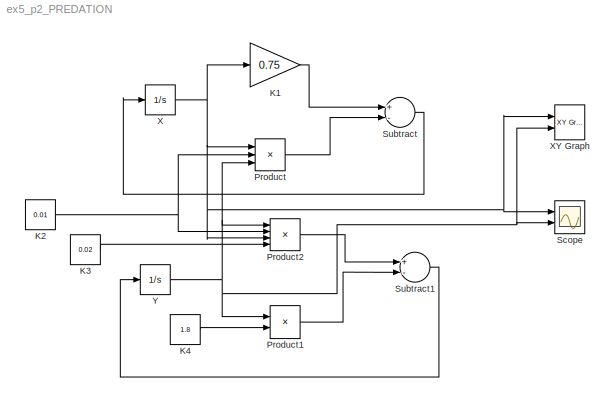
MODEL ex5_p2_PREDATION
KIND model
BLOCK [Gain] K1
  Gain = 0.75
  OutDataTypeStr = Inherit: Inherit via internal rule
  ParamDataTypeStr = Inherit: Inherit via internal rule
  SID = 1
  SaturateOnIntegerOverflow = off
BLOCK [Constant] K2
  SID = 6
  Value = 0.01
BLOCK [Constant] K3
  SID = 13
  Value = 0.02
BLOCK [Constant] K4
  SID = 14
  Value = 1.8
BLOCK [Product] Product
  InputSameDT = off
  Inputs = 3
  OutDataTypeStr = Inherit: Inherit via internal rule
  Ports = [3, 1]
  RndMeth = Floor
  SID = 5
  SaturateOnIntegerOverflow = off
BLOCK [Product] Product1
  InputSameDT = off
  OutDataTypeStr = Inherit: Inherit via internal rule
  Ports = [2, 1]
  RndMeth = Floor
  SID = 9
  SaturateOnIntegerOverflow = off
BLOCK [Product] Product2
  InputSameDT = off
  Inputs = 4
  OutDataTypeStr = Inherit: Inherit via internal rule
  Ports = [4, 1]
  RndMeth = Floor
  SID = 12
  SaturateOnIntegerOverflow = off
BLOCK [Scope] Scope
  DataFormat = StructureWithTime
  Floating = off
  NumInputPorts = 2
  Ports = [2]
  SID = 16
  SampleTime = 0
  ShowLegends = off
  YMax = 5~5
  YMin = -5~-5
  ZoomMode = yonly
BLOCK [Sum] Subtract
  InputSameDT = off
  Inputs = +-
  OutDataTypeStr = Inherit: Inherit via internal rule
  Ports = [2, 1]
  SID = 2
  SaturateOnIntegerOverflow = off
BLOCK [Sum] Subtract1
  InputSameDT = off
  Inputs = +-
  OutDataTypeStr = Inherit: Inherit via internal rule
  Ports = [2, 1]
  SID = 10
  SaturateOnIntegerOverflow = off
BLOCK [Integrator] X
  InitialCondition = 140000
  Ports = [1, 1]
  SID = 3
BLOCK [Reference] XY Graph  REF=simulink/Sinks/XY Graph
  Ports = [2]
  SID = 17
  SourceBlock = simulink/Sinks/XY Graph
  SourceType = XY scope.
  st = -1
  xmax = 150000
  xmin = 0
  ymax = 3000
  ymin = 0
BLOCK [Integrator] Y
  InitialCondition = 10
  Ports = [1, 1]
  SID = 11
LINE K1:1 -> Subtract:1
NET K2:1 -> Product2:2, Product:2
LINE K3:1 -> Product2:4
LINE K4:1 -> Product1:2
LINE Product1:1 -> Subtract1:2
LINE Product2:1 -> Subtract1:1
LINE Product:1 -> Subtract:2
LINE Subtract1:1 -> Y:1
LINE Subtract:1 -> X:1
NET X:1 -> K1:1, Product2:3, Product:1, Scope:1, XY Graph:1
NET Y:1 -> Product1:1, Product2:1, Product:3, Scope:2, XY Graph:2
note: NET lines group one-source signal fan-out (src -> all destinations, sorted); 1:1 wires keep LINE
